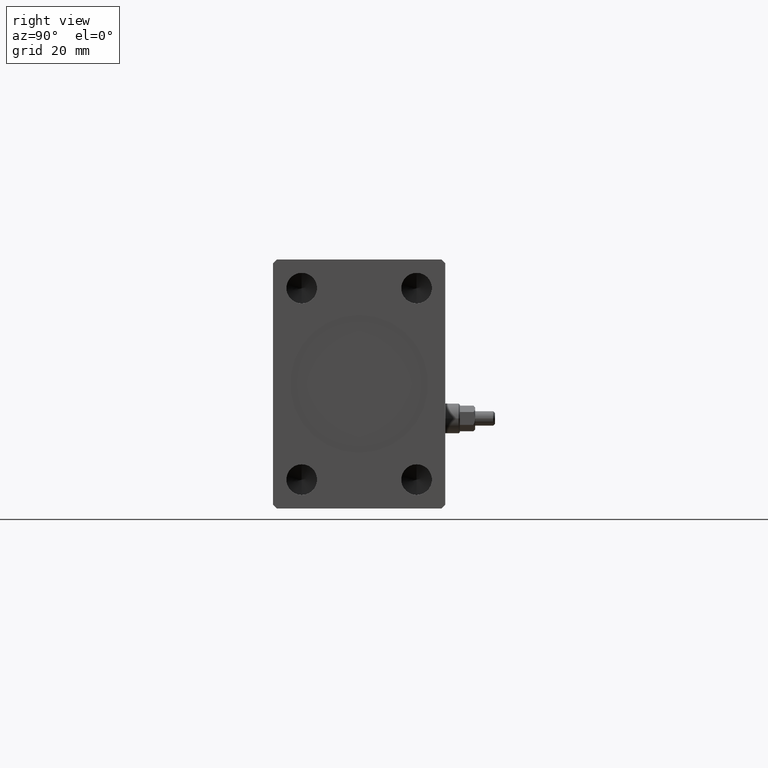
[diagram: clean part render]
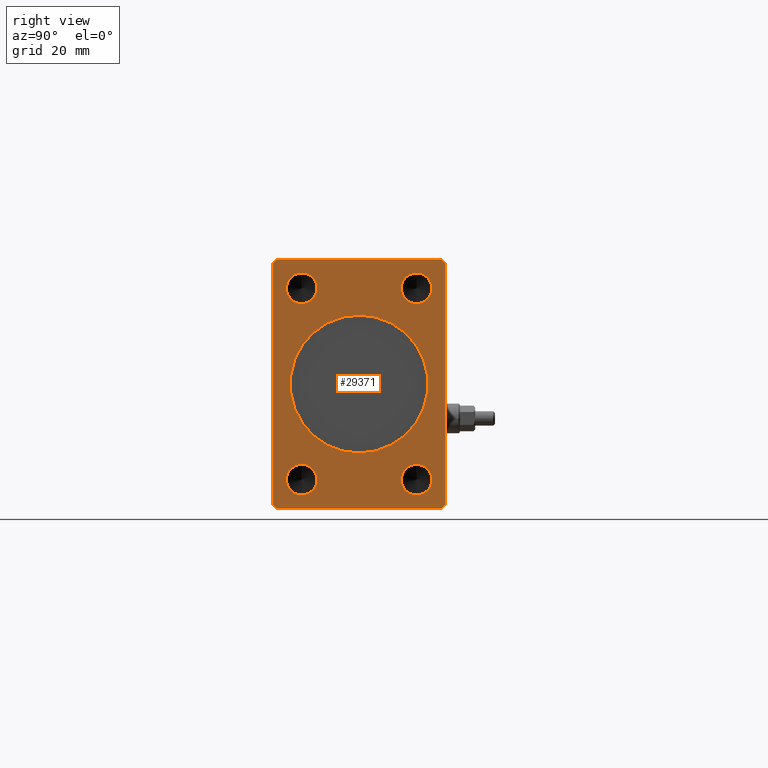
[diagram: same view with one face highlighted and labeled with its STEP entity id]
A machine part, right view. The second image highlights one B-rep face of the part: STEP entity #29371.
In plain terms, the highlighted planar face has unit normal (1, 0, 0).
Its self-contained STEP definition (entity closure, byte-faithful):
#179 = EDGE_CURVE ( 'NONE', #20001, #24160, #4403, .T. ) ;
#259 = VERTEX_POINT ( 'NONE', #40458 ) ;
#267 = AXIS2_PLACEMENT_3D ( 'NONE', #14725, #35537, #1477 ) ;
#413 = ORIENTED_EDGE ( 'NONE', *, *, #179, .T. ) ;
#750 = DIRECTION ( 'NONE',  ( 0.000000000000000000, -0.7071067811865474617, 0.7071067811865474617 ) ) ;
#812 = CARTESIAN_POINT ( 'NONE',  ( 163.0000000000000000, -14.99999999999999645, 24.99999999999999645 ) ) ;
#851 = DIRECTION ( 'NONE',  ( 0.000000000000000000, 0.7071067811865474617, 0.7071067811865474617 ) ) ;
#912 = ORIENTED_EDGE ( 'NONE', *, *, #13121, .F. ) ;
#1032 = EDGE_CURVE ( 'NONE', #35318, #23010, #42476, .T. ) ;
#1477 = DIRECTION ( 'NONE',  ( 0.000000000000000000, 0.000000000000000000, -1.000000000000000000 ) ) ;
#1490 = ORIENTED_EDGE ( 'NONE', *, *, #8696, .F. ) ;
#1792 = AXIS2_PLACEMENT_3D ( 'NONE', #14536, #7924, #32346 ) ;
#1828 = CARTESIAN_POINT ( 'NONE',  ( 163.0000000000000000, 15.00000000000000355, -20.99999999999999289 ) ) ;
#2203 = CARTESIAN_POINT ( 'NONE',  ( 163.0000000000000000, 21.49999999999999645, 32.50000000000000000 ) ) ;
#2327 = CARTESIAN_POINT ( 'NONE',  ( 163.0000000000000000, -14.99999999999999645, -28.99999999999999645 ) ) ;
#2339 = EDGE_LOOP ( 'NONE', ( #413, #21171, #36882, #25944, #6248, #25629, #3459, #41321 ) ) ;
#2393 = ORIENTED_EDGE ( 'NONE', *, *, #3355, .F. ) ;
#2546 = CARTESIAN_POINT ( 'NONE',  ( 163.0000000000000000, -22.50000000000001776, 31.50000000000000000 ) ) ;
#2859 = DIRECTION ( 'NONE',  ( 0.000000000000000000, 0.000000000000000000, -1.000000000000000000 ) ) ;
#2948 = CARTESIAN_POINT ( 'NONE',  ( 163.0000000000000000, -22.50000000000001421, -31.50000000000000711 ) ) ;
#3124 = VECTOR ( 'NONE', #851, 1000.000000000000114 ) ;
#3128 = EDGE_CURVE ( 'NONE', #43326, #22488, #38090, .T. ) ;
#3355 = EDGE_CURVE ( 'NONE', #259, #4976, #30101, .T. ) ;
#3384 = ORIENTED_EDGE ( 'NONE', *, *, #18763, .F. ) ;
#3459 = ORIENTED_EDGE ( 'NONE', *, *, #3128, .T. ) ;
#3983 = VECTOR ( 'NONE', #26657, 1000.000000000000000 ) ;
#4403 = LINE ( 'NONE', #18331, #31509 ) ;
#4598 = LINE ( 'NONE', #32246, #23182 ) ;
#4976 = VERTEX_POINT ( 'NONE', #1828 ) ;
#5044 = DIRECTION ( 'NONE',  ( 0.000000000000000000, 0.000000000000000000, -1.000000000000000000 ) ) ;
#5549 = DIRECTION ( 'NONE',  ( 0.000000000000000000, -0.7071067811865474617, -0.7071067811865474617 ) ) ;
#5605 = CARTESIAN_POINT ( 'NONE',  ( 163.0000000000000000, -14.99999999999999645, -24.99999999999999645 ) ) ;
#5703 = CARTESIAN_POINT ( 'NONE',  ( 163.0000000000000000, 15.00000000000000355, 25.00000000000000000 ) ) ;
#5798 = EDGE_LOOP ( 'NONE', ( #2393, #41147 ) ) ;
#5932 = PLANE ( 'NONE',  #14570 ) ;
#6056 = CARTESIAN_POINT ( 'NONE',  ( 163.0000000000000000, 15.00000000000000355, -24.99999999999999289 ) ) ;
#6248 = ORIENTED_EDGE ( 'NONE', *, *, #15571, .T. ) ;
#7920 = CARTESIAN_POINT ( 'NONE',  ( 163.0000000000000000, 0.000000000000000000, 0.000000000000000000 ) ) ;
#7924 = DIRECTION ( 'NONE',  ( 1.000000000000000000, -0.000000000000000000, -0.000000000000000000 ) ) ;
#7963 = CIRCLE ( 'NONE', #16673, 4.000000000000000000 ) ;
#8131 = CARTESIAN_POINT ( 'NONE',  ( 163.0000000000000000, 15.00000000000000355, 21.00000000000000000 ) ) ;
#8390 = DIRECTION ( 'NONE',  ( 0.000000000000000000, 0.000000000000000000, -1.000000000000000000 ) ) ;
#8618 = CARTESIAN_POINT ( 'NONE',  ( 163.0000000000000000, -14.99999999999999645, -24.99999999999999645 ) ) ;
#8696 = EDGE_CURVE ( 'NONE', #29745, #30050, #44024, .T. ) ;
#8938 = VERTEX_POINT ( 'NONE', #42558 ) ;
#9012 = VERTEX_POINT ( 'NONE', #17658 ) ;
#9027 = DIRECTION ( 'NONE',  ( 0.000000000000000000, 0.000000000000000000, -1.000000000000000000 ) ) ;
#9055 = VECTOR ( 'NONE', #33908, 1000.000000000000000 ) ;
#9284 = DIRECTION ( 'NONE',  ( 0.000000000000000000, -1.000000000000000000, 0.000000000000000000 ) ) ;
#9532 = CARTESIAN_POINT ( 'NONE',  ( 163.0000000000000000, -21.50000000000001776, -32.50000000000000711 ) ) ;
#10193 = ORIENTED_EDGE ( 'NONE', *, *, #31619, .F. ) ;
#10427 = EDGE_CURVE ( 'NONE', #11928, #42345, #23381, .T. ) ;
#10898 = CARTESIAN_POINT ( 'NONE',  ( 163.0000000000000000, 21.49999999999999645, -32.50000000000000000 ) ) ;
#11772 = DIRECTION ( 'NONE',  ( 1.000000000000000000, 0.000000000000000000, 0.000000000000000000 ) ) ;
#11928 = VERTEX_POINT ( 'NONE', #17771 ) ;
#12059 = EDGE_CURVE ( 'NONE', #22488, #20001, #37990, .T. ) ;
#12180 = CIRCLE ( 'NONE', #29704, 4.000000000000000000 ) ;
#12216 = CARTESIAN_POINT ( 'NONE',  ( 163.0000000000000000, -14.99999999999999645, -20.99999999999999645 ) ) ;
#12361 = AXIS2_PLACEMENT_3D ( 'NONE', #5605, #40328, #9027 ) ;
#12380 = EDGE_CURVE ( 'NONE', #24160, #11928, #44480, .T. ) ;
#12453 = DIRECTION ( 'NONE',  ( 1.000000000000000000, -0.000000000000000000, -0.000000000000000000 ) ) ;
#12546 = FACE_OUTER_BOUND ( 'NONE', #2339, .T. ) ;
#12730 = DIRECTION ( 'NONE',  ( 1.000000000000000000, -0.000000000000000000, -0.000000000000000000 ) ) ;
#12878 = CARTESIAN_POINT ( 'NONE',  ( 163.0000000000000000, -21.50000000000001776, -32.50000000000000711 ) ) ;
#13121 = EDGE_CURVE ( 'NONE', #8938, #15693, #14962, .T. ) ;
#13420 = VECTOR ( 'NONE', #5549, 1000.000000000000114 ) ;
#13443 = DIRECTION ( 'NONE',  ( 0.000000000000000000, 0.000000000000000000, -1.000000000000000000 ) ) ;
#14536 = CARTESIAN_POINT ( 'NONE',  ( 163.0000000000000000, -14.99999999999999645, 24.99999999999999645 ) ) ;
#14570 = AXIS2_PLACEMENT_3D ( 'NONE', #33800, #26078, #36790 ) ;
#14725 = CARTESIAN_POINT ( 'NONE',  ( 163.0000000000000000, 0.000000000000000000, 0.000000000000000000 ) ) ;
#14962 = CIRCLE ( 'NONE', #39080, 4.000000000000000000 ) ;
#15571 = EDGE_CURVE ( 'NONE', #9012, #27120, #42417, .T. ) ;
#15693 = VERTEX_POINT ( 'NONE', #8131 ) ;
#16673 = AXIS2_PLACEMENT_3D ( 'NONE', #29670, #12730, #36745 ) ;
#17658 = CARTESIAN_POINT ( 'NONE',  ( 163.0000000000000000, -22.50000000000001421, -31.50000000000000711 ) ) ;
#17771 = CARTESIAN_POINT ( 'NONE',  ( 163.0000000000000000, -21.50000000000001421, 32.50000000000000000 ) ) ;
#18331 = CARTESIAN_POINT ( 'NONE',  ( 163.0000000000000000, 22.49999999999999645, 31.50000000000000000 ) ) ;
#18763 = EDGE_CURVE ( 'NONE', #22780, #20874, #12180, .T. ) ;
#18964 = CIRCLE ( 'NONE', #12361, 4.000000000000000000 ) ;
#18971 = DIRECTION ( 'NONE',  ( 1.000000000000000000, -0.000000000000000000, -0.000000000000000000 ) ) ;
#20001 = VERTEX_POINT ( 'NONE', #40141 ) ;
#20485 = EDGE_LOOP ( 'NONE', ( #37391, #26483 ) ) ;
#20874 = VERTEX_POINT ( 'NONE', #30548 ) ;
#21171 = ORIENTED_EDGE ( 'NONE', *, *, #12380, .T. ) ;
#22247 = VECTOR ( 'NONE', #9284, 1000.000000000000000 ) ;
#22487 = CARTESIAN_POINT ( 'NONE',  ( 163.0000000000000000, 0.000000000000000000, -18.00000000000000000 ) ) ;
#22488 = VERTEX_POINT ( 'NONE', #45056 ) ;
#22564 = DIRECTION ( 'NONE',  ( 1.000000000000000000, -0.000000000000000000, -0.000000000000000000 ) ) ;
#22780 = VERTEX_POINT ( 'NONE', #30606 ) ;
#23010 = VERTEX_POINT ( 'NONE', #2327 ) ;
#23182 = VECTOR ( 'NONE', #28160, 1000.000000000000000 ) ;
#23227 = EDGE_CURVE ( 'NONE', #42345, #9012, #4598, .T. ) ;
#23381 = LINE ( 'NONE', #40503, #13420 ) ;
#24160 = VERTEX_POINT ( 'NONE', #40178 ) ;
#24598 = DIRECTION ( 'NONE',  ( 1.000000000000000000, -0.000000000000000000, -0.000000000000000000 ) ) ;
#25629 = ORIENTED_EDGE ( 'NONE', *, *, #34515, .T. ) ;
#25856 = FACE_BOUND ( 'NONE', #41135, .T. ) ;
#25944 = ORIENTED_EDGE ( 'NONE', *, *, #23227, .T. ) ;
#26078 = DIRECTION ( 'NONE',  ( 1.000000000000000000, 0.000000000000000000, 0.000000000000000000 ) ) ;
#26483 = ORIENTED_EDGE ( 'NONE', *, *, #1032, .F. ) ;
#26657 = DIRECTION ( 'NONE',  ( 0.000000000000000000, 0.000000000000000000, 1.000000000000000000 ) ) ;
#26804 = CIRCLE ( 'NONE', #32613, 4.000000000000000000 ) ;
#27105 = EDGE_CURVE ( 'NONE', #15693, #8938, #7963, .T. ) ;
#27120 = VERTEX_POINT ( 'NONE', #9532 ) ;
#27209 = AXIS2_PLACEMENT_3D ( 'NONE', #6056, #12453, #2859 ) ;
#27238 = AXIS2_PLACEMENT_3D ( 'NONE', #7920, #11772, #36671 ) ;
#28070 = CIRCLE ( 'NONE', #1792, 4.000000000000000000 ) ;
#28160 = DIRECTION ( 'NONE',  ( 0.000000000000000000, 5.507058653894625853E-17, -1.000000000000000000 ) ) ;
#28228 = ORIENTED_EDGE ( 'NONE', *, *, #35235, .F. ) ;
#28491 = DIRECTION ( 'NONE',  ( 0.000000000000000000, 0.7071067811865451302, -0.7071067811865500152 ) ) ;
#28690 = CIRCLE ( 'NONE', #27238, 18.00000000000000000 ) ;
#28837 = CARTESIAN_POINT ( 'NONE',  ( 163.0000000000000000, 21.49999999999999645, -32.50000000000000000 ) ) ;
#28937 = VECTOR ( 'NONE', #28491, 1000.000000000000114 ) ;
#29371 = ADVANCED_FACE ( 'NONE', ( #37240, #33126, #36354, #33580, #25856, #12546 ), #5932, .T. ) ;
#29670 = CARTESIAN_POINT ( 'NONE',  ( 163.0000000000000000, 15.00000000000000355, 25.00000000000000000 ) ) ;
#29704 = AXIS2_PLACEMENT_3D ( 'NONE', #812, #24598, #32326 ) ;
#29745 = VERTEX_POINT ( 'NONE', #40113 ) ;
#29770 = EDGE_CURVE ( 'NONE', #23010, #35318, #18964, .T. ) ;
#30050 = VERTEX_POINT ( 'NONE', #22487 ) ;
#30101 = CIRCLE ( 'NONE', #27209, 4.000000000000000000 ) ;
#30548 = CARTESIAN_POINT ( 'NONE',  ( 163.0000000000000000, -14.99999999999999645, 20.99999999999999645 ) ) ;
#30606 = CARTESIAN_POINT ( 'NONE',  ( 163.0000000000000000, -14.99999999999999645, 28.99999999999999645 ) ) ;
#31329 = EDGE_LOOP ( 'NONE', ( #39517, #912 ) ) ;
#31509 = VECTOR ( 'NONE', #750, 1000.000000000000114 ) ;
#31619 = EDGE_CURVE ( 'NONE', #30050, #29745, #28690, .T. ) ;
#32246 = CARTESIAN_POINT ( 'NONE',  ( 163.0000000000000000, -22.50000000000001776, 31.50000000000000000 ) ) ;
#32326 = DIRECTION ( 'NONE',  ( 0.000000000000000000, 0.000000000000000000, -1.000000000000000000 ) ) ;
#32346 = DIRECTION ( 'NONE',  ( 0.000000000000000000, 0.000000000000000000, -1.000000000000000000 ) ) ;
#32613 = AXIS2_PLACEMENT_3D ( 'NONE', #36350, #18971, #5044 ) ;
#32961 = AXIS2_PLACEMENT_3D ( 'NONE', #8618, #22564, #8390 ) ;
#33126 = FACE_BOUND ( 'NONE', #31329, .T. ) ;
#33580 = FACE_BOUND ( 'NONE', #5798, .T. ) ;
#33800 = CARTESIAN_POINT ( 'NONE',  ( 163.0000000000000000, 0.000000000000000000, 0.000000000000000000 ) ) ;
#33908 = DIRECTION ( 'NONE',  ( 0.000000000000000000, 1.000000000000000000, 1.613696256722610912E-16 ) ) ;
#34143 = LINE ( 'NONE', #12878, #9055 ) ;
#34515 = EDGE_CURVE ( 'NONE', #27120, #43326, #34143, .T. ) ;
#35235 = EDGE_CURVE ( 'NONE', #20874, #22780, #28070, .T. ) ;
#35318 = VERTEX_POINT ( 'NONE', #12216 ) ;
#35537 = DIRECTION ( 'NONE',  ( 1.000000000000000000, 0.000000000000000000, 0.000000000000000000 ) ) ;
#36350 = CARTESIAN_POINT ( 'NONE',  ( 163.0000000000000000, 15.00000000000000355, -24.99999999999999289 ) ) ;
#36354 = FACE_BOUND ( 'NONE', #20485, .T. ) ;
#36671 = DIRECTION ( 'NONE',  ( 0.000000000000000000, 0.000000000000000000, -1.000000000000000000 ) ) ;
#36709 = CARTESIAN_POINT ( 'NONE',  ( 163.0000000000000000, 22.49999999999999645, -31.50000000000000000 ) ) ;
#36745 = DIRECTION ( 'NONE',  ( 0.000000000000000000, 0.000000000000000000, -1.000000000000000000 ) ) ;
#36790 = DIRECTION ( 'NONE',  ( 0.000000000000000000, 0.000000000000000000, -1.000000000000000000 ) ) ;
#36882 = ORIENTED_EDGE ( 'NONE', *, *, #10427, .T. ) ;
#36997 = DIRECTION ( 'NONE',  ( 1.000000000000000000, -0.000000000000000000, -0.000000000000000000 ) ) ;
#37240 = FACE_BOUND ( 'NONE', #45042, .T. ) ;
#37391 = ORIENTED_EDGE ( 'NONE', *, *, #29770, .F. ) ;
#37990 = LINE ( 'NONE', #36709, #3983 ) ;
#38090 = LINE ( 'NONE', #10898, #3124 ) ;
#39080 = AXIS2_PLACEMENT_3D ( 'NONE', #5703, #36997, #13443 ) ;
#39517 = ORIENTED_EDGE ( 'NONE', *, *, #27105, .F. ) ;
#40113 = CARTESIAN_POINT ( 'NONE',  ( 163.0000000000000000, 2.204364238465235428E-15, 18.00000000000000000 ) ) ;
#40141 = CARTESIAN_POINT ( 'NONE',  ( 163.0000000000000000, 22.49999999999999645, 31.50000000000000000 ) ) ;
#40178 = CARTESIAN_POINT ( 'NONE',  ( 163.0000000000000000, 21.49999999999999645, 32.50000000000000000 ) ) ;
#40328 = DIRECTION ( 'NONE',  ( 1.000000000000000000, -0.000000000000000000, -0.000000000000000000 ) ) ;
#40458 = CARTESIAN_POINT ( 'NONE',  ( 163.0000000000000000, 15.00000000000000355, -28.99999999999999289 ) ) ;
#40503 = CARTESIAN_POINT ( 'NONE',  ( 163.0000000000000000, -21.50000000000001421, 32.50000000000000000 ) ) ;
#41135 = EDGE_LOOP ( 'NONE', ( #28228, #3384 ) ) ;
#41147 = ORIENTED_EDGE ( 'NONE', *, *, #42664, .F. ) ;
#41321 = ORIENTED_EDGE ( 'NONE', *, *, #12059, .T. ) ;
#42345 = VERTEX_POINT ( 'NONE', #2546 ) ;
#42417 = LINE ( 'NONE', #2948, #28937 ) ;
#42476 = CIRCLE ( 'NONE', #32961, 4.000000000000000000 ) ;
#42558 = CARTESIAN_POINT ( 'NONE',  ( 163.0000000000000000, 15.00000000000000355, 29.00000000000000000 ) ) ;
#42664 = EDGE_CURVE ( 'NONE', #4976, #259, #26804, .T. ) ;
#43326 = VERTEX_POINT ( 'NONE', #28837 ) ;
#44024 = CIRCLE ( 'NONE', #267, 18.00000000000000000 ) ;
#44480 = LINE ( 'NONE', #2203, #22247 ) ;
#45042 = EDGE_LOOP ( 'NONE', ( #10193, #1490 ) ) ;
#45056 = CARTESIAN_POINT ( 'NONE',  ( 163.0000000000000000, 22.49999999999999645, -31.50000000000000000 ) ) ;